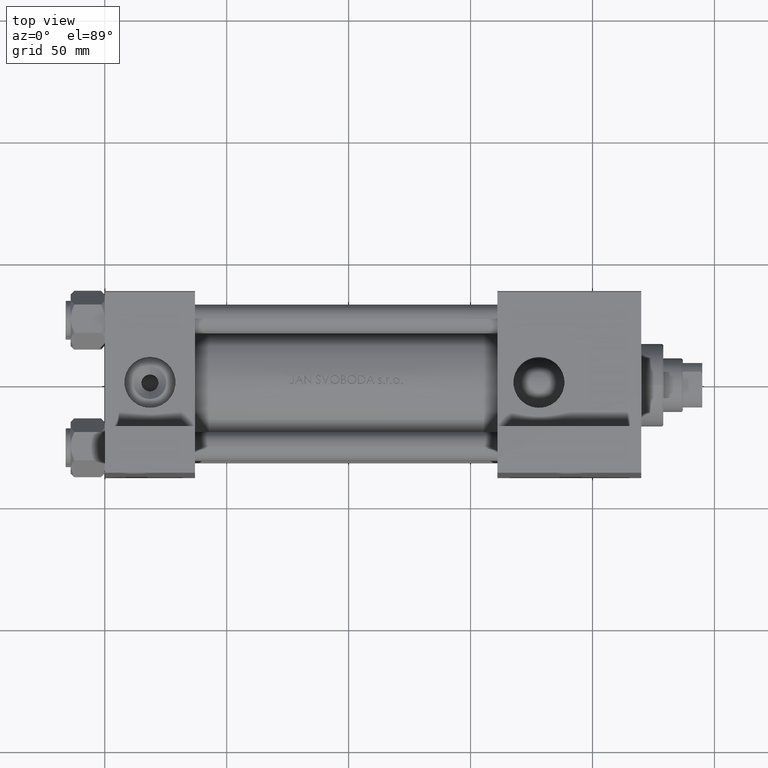
[diagram: clean part render]
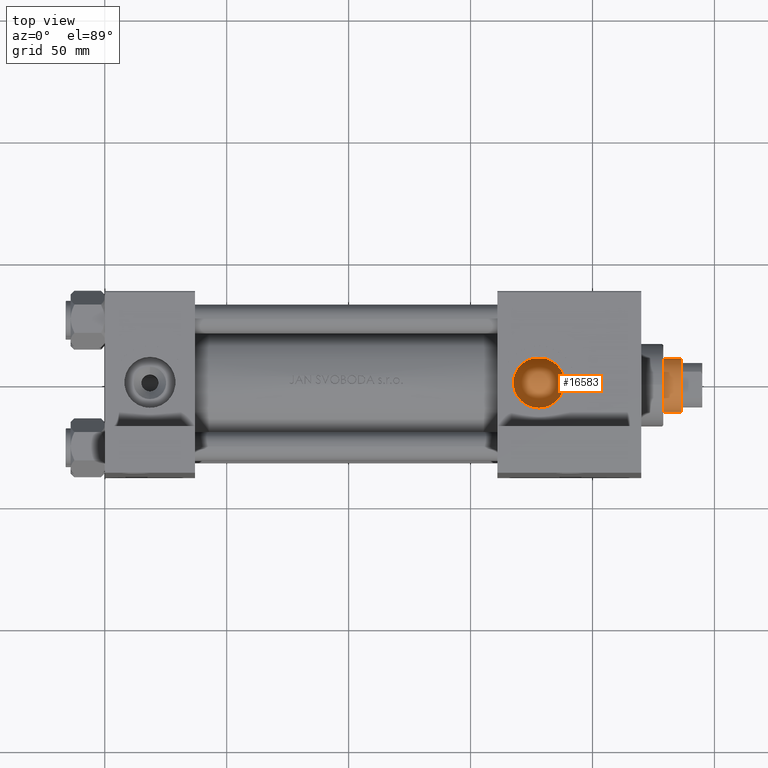
[diagram: same view with one face highlighted and labeled with its STEP entity id]
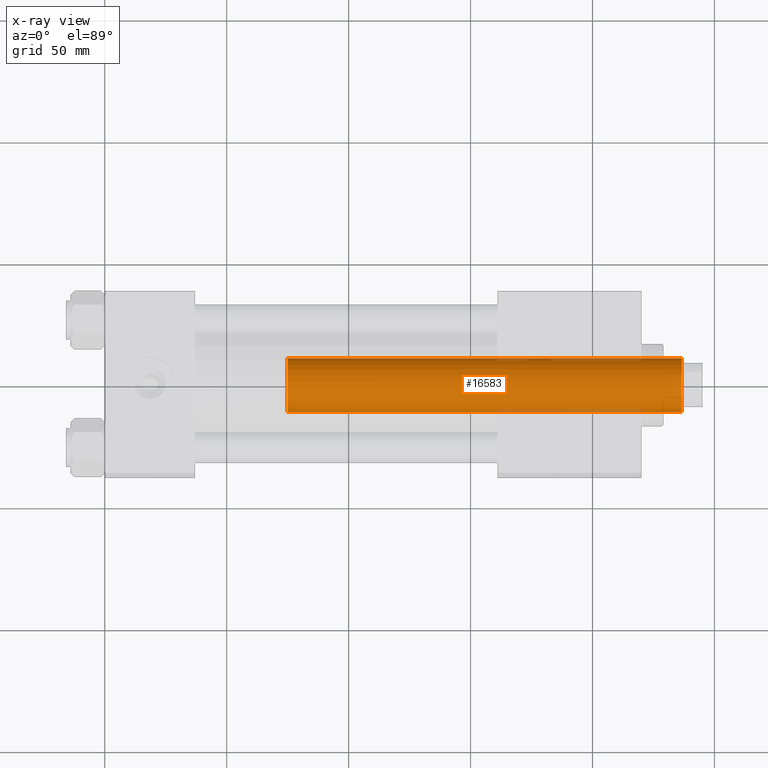
[diagram: x-ray of the same camera — body ghosted, the highlighted face saturated]
A machine part, top view. The second image highlights one B-rep face of the part: STEP entity #16583.
The next image is the same camera in x-ray: the body ghosted, the highlighted face saturated — about 4% of this face is hidden behind the body in this view.
In plain terms, the highlighted cylindrical surface (edge-blend (fillet) strip) has radius 11 mm, axis along (-1, 0, 0).
Its self-contained STEP definition (entity closure, byte-faithful):
#224 = VERTEX_POINT ( 'NONE', #22969 ) ;
#1116 = EDGE_CURVE ( 'NONE', #8920, #39940, #13051, .T. ) ;
#3809 = CARTESIAN_POINT ( 'NONE',  ( 11.00000000000000000, 1.347111479062088405E-15, 38.00000000000000000 ) ) ;
#4368 = CARTESIAN_POINT ( 'NONE',  ( 0.000000000000000000, 0.000000000000000000, 199.4999999999999716 ) ) ;
#5090 = DIRECTION ( 'NONE',  ( -0.000000000000000000, -0.000000000000000000, -1.000000000000000000 ) ) ;
#5271 = CIRCLE ( 'NONE', #34721, 11.00000000000000000 ) ;
#6457 = VECTOR ( 'NONE', #5090, 1000.000000000000000 ) ;
#6800 = CIRCLE ( 'NONE', #15557, 11.00000000000000000 ) ;
#7383 = FACE_OUTER_BOUND ( 'NONE', #36922, .T. ) ;
#8074 = VERTEX_POINT ( 'NONE', #37560 ) ;
#8920 = VERTEX_POINT ( 'NONE', #23471 ) ;
#9977 = AXIS2_PLACEMENT_3D ( 'NONE', #22339, #18591, #48973 ) ;
#10614 = CYLINDRICAL_SURFACE ( 'NONE', #9977, 11.00000000000000000 ) ;
#13051 = LINE ( 'NONE', #24036, #6457 ) ;
#14905 = DIRECTION ( 'NONE',  ( 1.000000000000000000, 0.000000000000000000, 0.000000000000000000 ) ) ;
#15340 = CARTESIAN_POINT ( 'NONE',  ( 0.000000000000000000, 0.000000000000000000, 38.00000000000000000 ) ) ;
#15557 = AXIS2_PLACEMENT_3D ( 'NONE', #15340, #34288, #39016 ) ;
#16583 = ADVANCED_FACE ( 'NONE', ( #7383 ), #10614, .T. ) ;
#16700 = EDGE_CURVE ( 'NONE', #8074, #39940, #6800, .T. ) ;
#18591 = DIRECTION ( 'NONE',  ( -0.000000000000000000, -0.000000000000000000, -1.000000000000000000 ) ) ;
#21024 = EDGE_CURVE ( 'NONE', #8920, #224, #5271, .T. ) ;
#22339 = CARTESIAN_POINT ( 'NONE',  ( 0.000000000000000000, 0.000000000000000000, 200.0000000000000000 ) ) ;
#22969 = CARTESIAN_POINT ( 'NONE',  ( -11.00000000000000000, 0.000000000000000000, 199.4999999999999716 ) ) ;
#23022 = DIRECTION ( 'NONE',  ( -0.000000000000000000, -0.000000000000000000, -1.000000000000000000 ) ) ;
#23471 = CARTESIAN_POINT ( 'NONE',  ( 11.00000000000000000, 1.347111479062088405E-15, 199.4999999999999716 ) ) ;
#24036 = CARTESIAN_POINT ( 'NONE',  ( 11.00000000000000000, 1.347111479062088405E-15, 200.0000000000000000 ) ) ;
#24572 = ORIENTED_EDGE ( 'NONE', *, *, #1116, .F. ) ;
#29634 = DIRECTION ( 'NONE',  ( 0.000000000000000000, 0.000000000000000000, -1.000000000000000000 ) ) ;
#32558 = ORIENTED_EDGE ( 'NONE', *, *, #44100, .T. ) ;
#34288 = DIRECTION ( 'NONE',  ( 0.000000000000000000, 0.000000000000000000, 1.000000000000000000 ) ) ;
#34721 = AXIS2_PLACEMENT_3D ( 'NONE', #4368, #29634, #14905 ) ;
#36376 = ORIENTED_EDGE ( 'NONE', *, *, #16700, .T. ) ;
#36922 = EDGE_LOOP ( 'NONE', ( #24572, #37241, #32558, #36376 ) ) ;
#37241 = ORIENTED_EDGE ( 'NONE', *, *, #21024, .T. ) ;
#37560 = CARTESIAN_POINT ( 'NONE',  ( -11.00000000000000000, 0.000000000000000000, 38.00000000000000000 ) ) ;
#38424 = VECTOR ( 'NONE', #23022, 1000.000000000000000 ) ;
#39016 = DIRECTION ( 'NONE',  ( 1.000000000000000000, 0.000000000000000000, 0.000000000000000000 ) ) ;
#39940 = VERTEX_POINT ( 'NONE', #3809 ) ;
#40949 = LINE ( 'NONE', #41942, #38424 ) ;
#41942 = CARTESIAN_POINT ( 'NONE',  ( -11.00000000000000000, 0.000000000000000000, 200.0000000000000000 ) ) ;
#44100 = EDGE_CURVE ( 'NONE', #224, #8074, #40949, .T. ) ;
#48973 = DIRECTION ( 'NONE',  ( -1.000000000000000000, 0.000000000000000000, 0.000000000000000000 ) ) ;